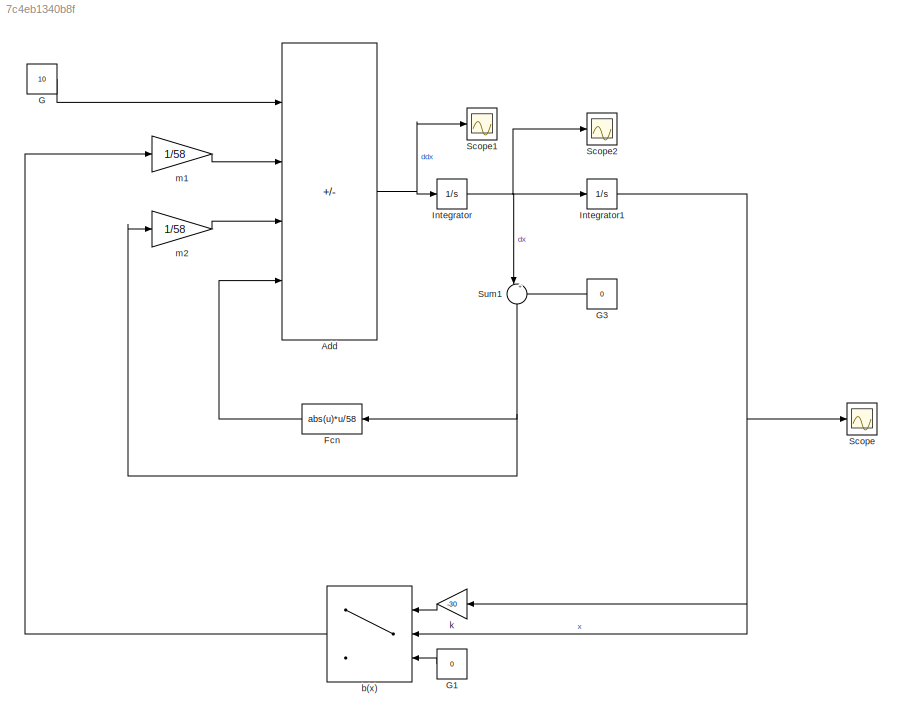
MODEL slx_7c4eb1340b8f
KIND model
CONFIG AbsTol = auto
CONFIG EnableMultiTasking = off
CONFIG FixedStep = auto
CONFIG MaxStep = auto
CONFIG MinStep = auto
CONFIG RelTol = 1e-3
CONFIG SampleTimeConstraint = Unconstrained
CONFIG SolverName = VariableStepAuto
CONFIG StartTime = 0.0
CONFIG StopTime = 100
BLOCK [Sum] Add
  IconShape = rectangular
  Inputs = ++--
BLOCK [Fcn] Fcn
  Expr = abs(u)*u/58
BLOCK [Constant] G
  Value = 10
BLOCK [Constant] G1
  Value = 0
BLOCK [Constant] G3
  Value = 0
BLOCK [Integrator] Integrator
BLOCK [Integrator] Integrator1
  InitialCondition = -30
BLOCK [Scope] Scope
  Floating = off
  NumInputPorts = 1
  ScopeSpecificationString = Simulink.scopes.TimeScopeBlockCfg('CurrentConfiguration', extmgr.ConfigurationSet(extmgr.Configuration('Core','General UI',true),extmgr.Configuration('Core','Source UI',true),extmgr.Configuration('Sources','WiredSimulink',true),extmgr.Configuration('Visuals','Time Domain',true,'SerializedDisplays',{struct('MinYLimReal','-38.54386','MaxYLimReal','46.89475','YLabelReal','','MinYLimMag','0.00000','Ma...<+1386ch>
BLOCK [Scope] Scope1
  Floating = off
  NumInputPorts = 1
  ScopeSpecificationString = Simulink.scopes.TimeScopeBlockCfg('CurrentConfiguration', extmgr.ConfigurationSet(extmgr.Configuration('Core','General UI',true),extmgr.Configuration('Core','Source UI',true),extmgr.Configuration('Sources','WiredSimulink',true,'DataLoggingVariableName','ScopeData1'),extmgr.Configuration('Visuals','Time Domain',true,'SerializedDisplays',{struct('MinYLimReal','-12.32576','MaxYLimReal','12.48064','YL...<+1393ch>
BLOCK [Scope] Scope2
  Floating = off
  NumInputPorts = 1
  ScopeSpecificationString = Simulink.scopes.TimeScopeBlockCfg('CurrentConfiguration', extmgr.ConfigurationSet(extmgr.Configuration('Core','General UI',true),extmgr.Configuration('Core','Source UI',true),extmgr.Configuration('Sources','WiredSimulink',true,'DataLoggingVariableName','ScopeData2'),extmgr.Configuration('Visuals','Time Domain',true,'SerializedDisplays',{struct('MinYLimReal','-9.30027','MaxYLimReal','18.33281','YLa...<+1409ch>
BLOCK [Sum] Sum1
  Inputs = |++
  NameLocation = left
BLOCK [Switch] b(x)
  Criteria = u2 > Threshold
  InputSameDT = off
  SaturateOnIntegerOverflow = off
BLOCK [Gain] k
  Gain = -30
BLOCK [Gain] m1
  Gain = 1/58
BLOCK [Gain] m2
  Gain = 1/58
NET Add:1 -> Integrator:1, Scope1:1
LINE Fcn:1 -> Add:4
LINE G1:1 -> b(x):3
LINE G3:1 -> Sum1:2
LINE G:1 -> Add:1
NET Integrator1:1 -> Scope:1, b(x):2, k:1
NET Integrator:1 -> Integrator1:1, Scope2:1, Sum1:1
NET Sum1:1 -> Fcn:1, m2:1
LINE b(x):1 -> m1:1
LINE k:1 -> b(x):1
LINE m1:1 -> Add:2
LINE m2:1 -> Add:3
note: NET lines group one-source signal fan-out (src -> all destinations, sorted); 1:1 wires keep LINE
